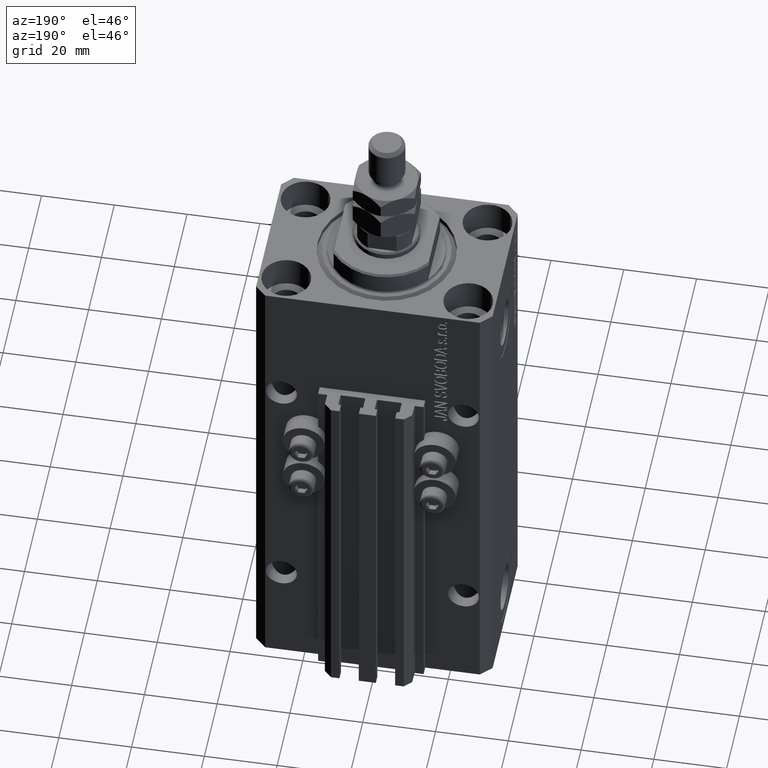
[diagram: clean part render]
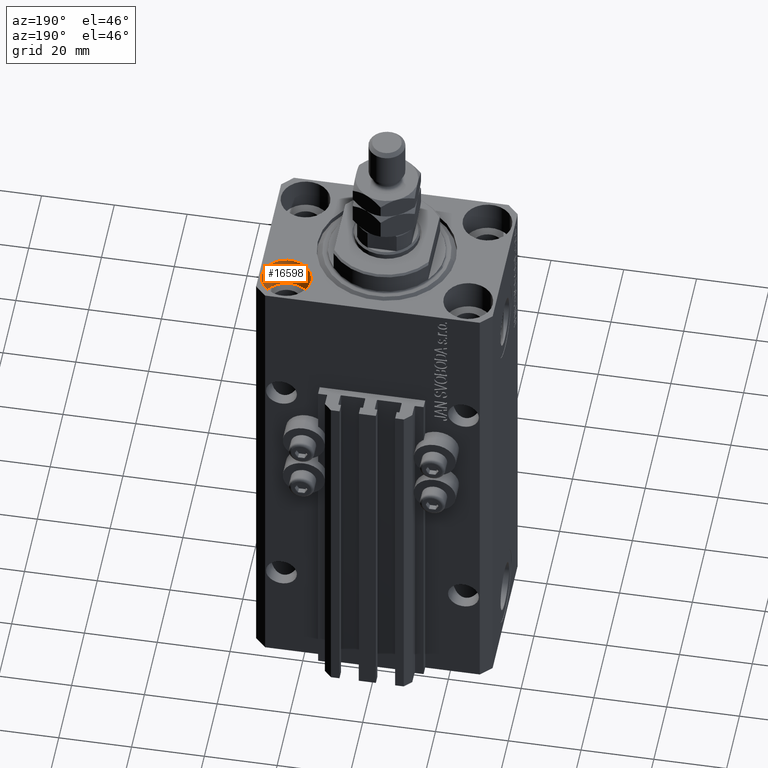
[diagram: same view with one face highlighted and labeled with its STEP entity id]
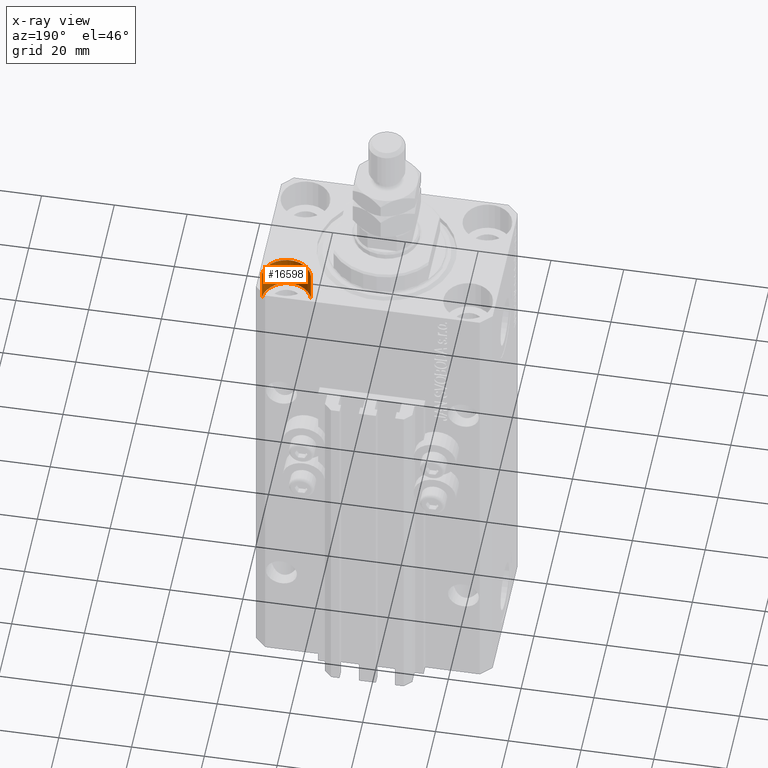
[diagram: x-ray of the same camera — body ghosted, the highlighted face saturated]
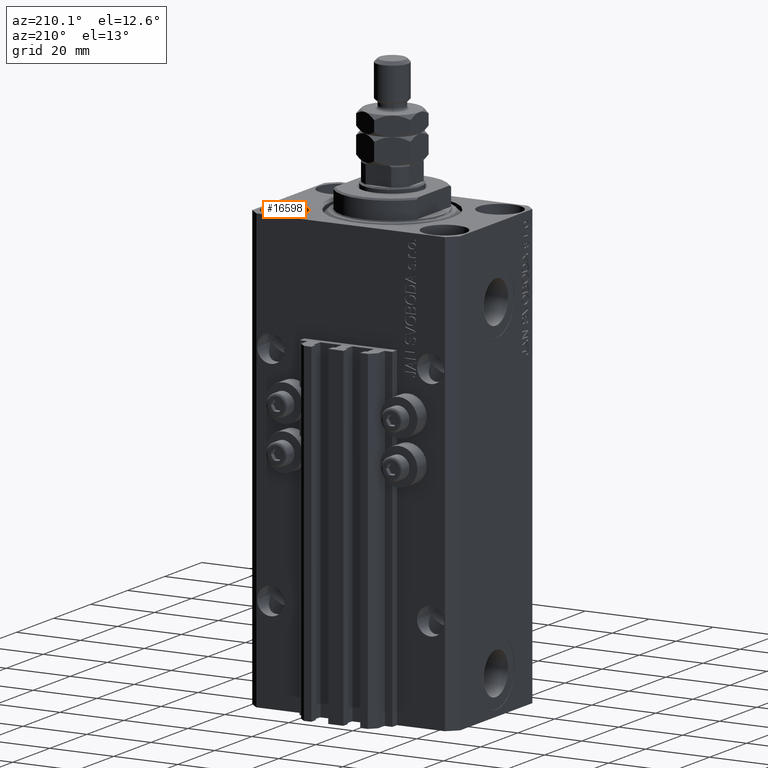
[diagram: same view with one face highlighted and labeled with its STEP entity id]
A machine part, auxiliary view. The second image highlights one B-rep face of the part: STEP entity #16598.
The next image is the same camera in x-ray: the body ghosted, the highlighted face saturated — about 0% of this face is hidden behind the body in this view.
A second angle (auxiliary view) of the same face is appended — the face is thin or edge-on in the first view.
In plain terms, the highlighted cylindrical surface (edge-blend (fillet) strip) has radius 6.75 mm, axis along (0, 0, 1).
Its self-contained STEP definition (entity closure, byte-faithful):
#835 = CIRCLE ( 'NONE', #28168, 6.749999999958452790 ) ;
#1326 = VERTEX_POINT ( 'NONE', #2537 ) ;
#2537 = CARTESIAN_POINT ( 'NONE',  ( 18.25000000004154543, 15.00000000000000888, -9.000000000000000000 ) ) ;
#3051 = EDGE_CURVE ( 'NONE', #1326, #28226, #19095, .T. ) ;
#3176 = FACE_OUTER_BOUND ( 'NONE', #5114, .T. ) ;
#3183 = CARTESIAN_POINT ( 'NONE',  ( 24.99999999999999645, 15.00000000000000888, 0.000000000000000000 ) ) ;
#5114 = EDGE_LOOP ( 'NONE', ( #5873, #39901, #34199, #48270 ) ) ;
#5572 = CARTESIAN_POINT ( 'NONE',  ( 24.99999999999999645, 15.00000000000000888, -9.000000000000000000 ) ) ;
#5873 = ORIENTED_EDGE ( 'NONE', *, *, #14790, .F. ) ;
#7750 = CARTESIAN_POINT ( 'NONE',  ( 18.25000000004154543, 15.00000000000000888, -9.000000000000000000 ) ) ;
#9000 = EDGE_CURVE ( 'NONE', #28226, #30090, #835, .T. ) ;
#9179 = CARTESIAN_POINT ( 'NONE',  ( 31.74999999995845101, 15.00000000000000888, -9.000000000000000000 ) ) ;
#12514 = VECTOR ( 'NONE', #21342, 1000.000000000000000 ) ;
#14036 = LINE ( 'NONE', #36454, #12514 ) ;
#14519 = CYLINDRICAL_SURFACE ( 'NONE', #30685, 6.749999999958452790 ) ;
#14790 = EDGE_CURVE ( 'NONE', #1326, #45573, #49054, .T. ) ;
#16598 = ADVANCED_FACE ( 'NONE', ( #3176 ), #14519, .F. ) ;
#19095 = LINE ( 'NONE', #7750, #25566 ) ;
#20941 = DIRECTION ( 'NONE',  ( 0.000000000000000000, 0.000000000000000000, 1.000000000000000000 ) ) ;
#21342 = DIRECTION ( 'NONE',  ( -0.000000000000000000, -0.000000000000000000, 1.000000000000000000 ) ) ;
#25566 = VECTOR ( 'NONE', #49806, 1000.000000000000000 ) ;
#28168 = AXIS2_PLACEMENT_3D ( 'NONE', #3183, #48513, #30154 ) ;
#28226 = VERTEX_POINT ( 'NONE', #47660 ) ;
#29901 = DIRECTION ( 'NONE',  ( 1.000000000000000000, 0.000000000000000000, 0.000000000000000000 ) ) ;
#30090 = VERTEX_POINT ( 'NONE', #49677 ) ;
#30154 = DIRECTION ( 'NONE',  ( 1.000000000000000000, 0.000000000000000000, 0.000000000000000000 ) ) ;
#30423 = EDGE_CURVE ( 'NONE', #45573, #30090, #14036, .T. ) ;
#30685 = AXIS2_PLACEMENT_3D ( 'NONE', #42432, #49759, #29901 ) ;
#34199 = ORIENTED_EDGE ( 'NONE', *, *, #9000, .T. ) ;
#36304 = DIRECTION ( 'NONE',  ( 1.000000000000000000, 0.000000000000000000, 0.000000000000000000 ) ) ;
#36454 = CARTESIAN_POINT ( 'NONE',  ( 31.74999999995845101, 15.00000000000000888, -9.000000000000000000 ) ) ;
#38628 = AXIS2_PLACEMENT_3D ( 'NONE', #5572, #20941, #36304 ) ;
#39901 = ORIENTED_EDGE ( 'NONE', *, *, #3051, .T. ) ;
#42432 = CARTESIAN_POINT ( 'NONE',  ( 24.99999999999999645, 15.00000000000000888, -9.000000000000000000 ) ) ;
#45573 = VERTEX_POINT ( 'NONE', #9179 ) ;
#47660 = CARTESIAN_POINT ( 'NONE',  ( 18.25000000004154543, 15.00000000000000888, 0.000000000000000000 ) ) ;
#48270 = ORIENTED_EDGE ( 'NONE', *, *, #30423, .F. ) ;
#48513 = DIRECTION ( 'NONE',  ( 0.000000000000000000, 0.000000000000000000, 1.000000000000000000 ) ) ;
#49054 = CIRCLE ( 'NONE', #38628, 6.749999999958452790 ) ;
#49677 = CARTESIAN_POINT ( 'NONE',  ( 31.74999999995845101, 15.00000000000000888, 0.000000000000000000 ) ) ;
#49759 = DIRECTION ( 'NONE',  ( -0.000000000000000000, -0.000000000000000000, 1.000000000000000000 ) ) ;
#49806 = DIRECTION ( 'NONE',  ( -0.000000000000000000, -0.000000000000000000, 1.000000000000000000 ) ) ;